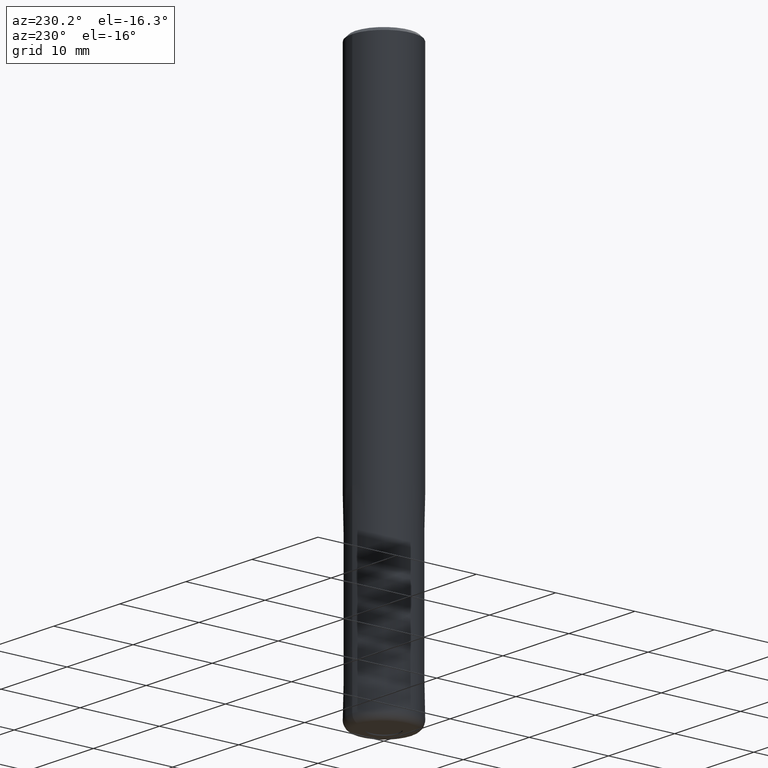
[diagram: clean part render]
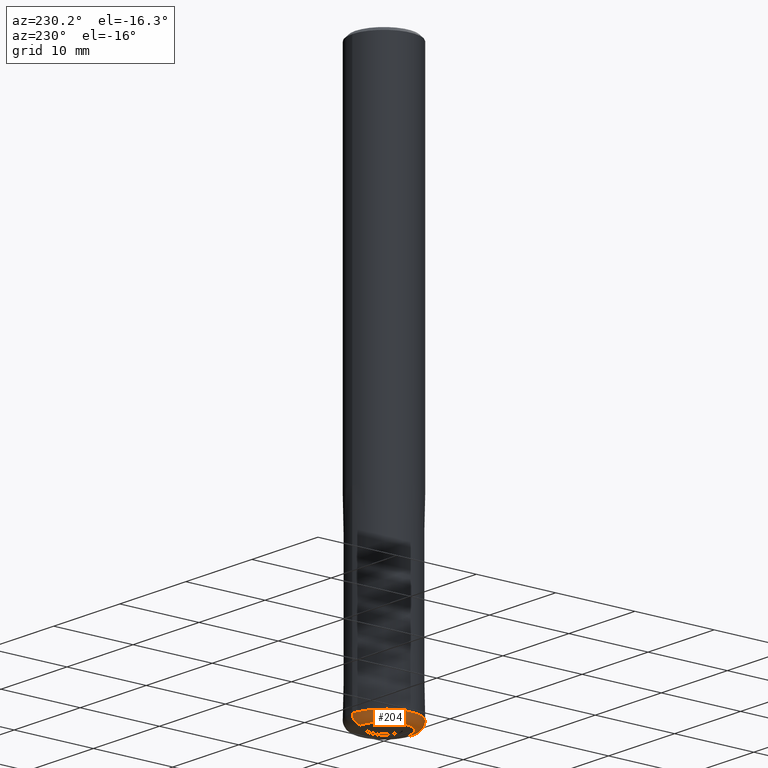
[diagram: same view with one face highlighted and labeled with its STEP entity id]
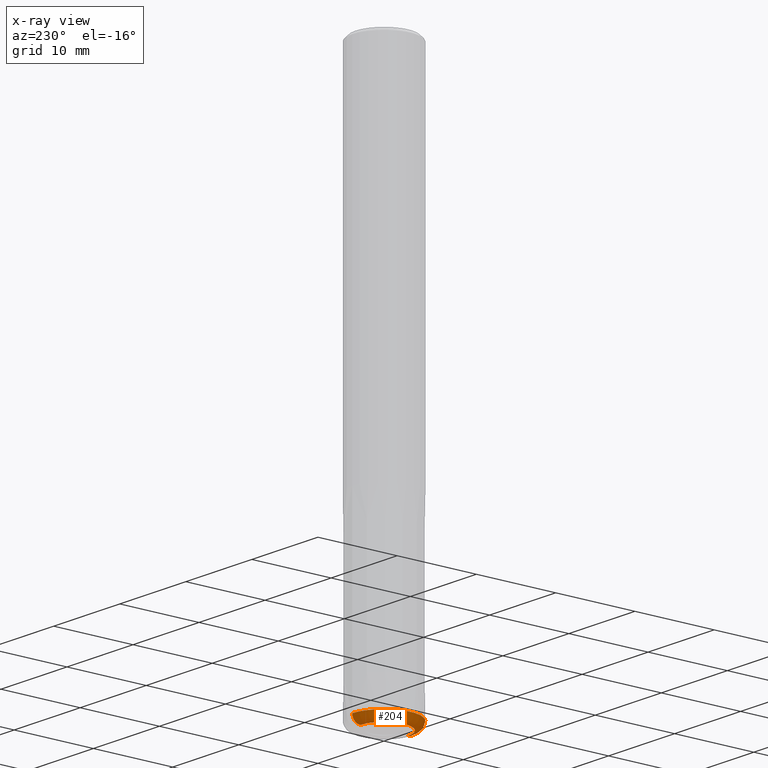
[diagram: x-ray of the same camera — body ghosted, the highlighted face saturated]
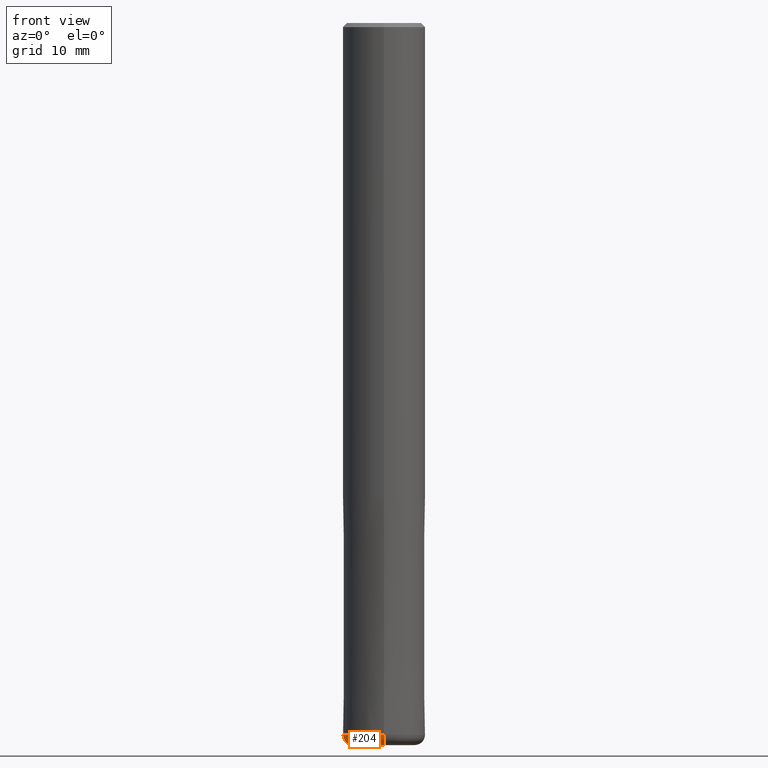
[diagram: same view with one face highlighted and labeled with its STEP entity id]
A machine part, auxiliary view. The second image highlights one B-rep face of the part: STEP entity #204.
The next image is the same camera in x-ray: the body ghosted, the highlighted face saturated — about 0% of this face is hidden behind the body in this view.
A second angle (front view) of the same face is appended — the face is thin or edge-on in the first view.
In plain terms, the highlighted toroidal blend (fillet) surface has major radius 3 mm and minor (blend) radius 1 mm.
Its self-contained STEP definition (entity closure, byte-faithful):
#112=EDGE_CURVE('',#216,#202,#273,.T.);
#126=EDGE_CURVE('',#132,#178,#288,.T.);
#132=VERTEX_POINT('',#294);
#152=EDGE_CURVE('',#202,#178,#318,.T.);
#178=VERTEX_POINT('',#348);
#202=VERTEX_POINT('',#376);
#204=ADVANCED_FACE('',(#378),#379,.T.);
#216=VERTEX_POINT('',#391);
#220=EDGE_CURVE('',#132,#216,#395,.T.);
#273=CIRCLE('',#448,3.0);
#288=CIRCLE('',#470,4.0);
#294=CARTESIAN_POINT('',(4.89842541528951E-016,-4.0,-69.0));
#318=CIRCLE('',#504,0.999999999999989);
#348=CARTESIAN_POINT('',(0.0,4.0,-69.0));
#376=CARTESIAN_POINT('',(0.0,3.0,-70.0));
#378=FACE_OUTER_BOUND('',#579,.T.);
#379=TOROIDAL_SURFACE('',#580,3.00000000000001,0.999999999999989);
#391=CARTESIAN_POINT('',(3.67381906146713E-016,-3.0,-70.0));
#395=CIRCLE('',#601,0.999999999999989);
#448=AXIS2_PLACEMENT_3D('',#643,#644,#645);
#470=AXIS2_PLACEMENT_3D('',#662,#663,#664);
#504=AXIS2_PLACEMENT_3D('',#699,#700,#701);
#579=EDGE_LOOP('',(#779,#780,#781,#782));
#580=AXIS2_PLACEMENT_3D('',#783,#784,#785);
#601=AXIS2_PLACEMENT_3D('',#797,#798,#799);
#643=CARTESIAN_POINT('',(0.0,0.0,-70.0));
#644=DIRECTION('',(0.0,0.0,-1.0));
#645=DIRECTION('',(0.0,1.0,0.0));
#662=CARTESIAN_POINT('',(0.0,0.0,-69.0));
#663=DIRECTION('',(0.0,0.0,-1.0));
#664=DIRECTION('',(0.0,1.0,0.0));
#699=CARTESIAN_POINT('',(-3.67381906146714E-016,3.00000000000001,-69.0));
#700=DIRECTION('',(1.0,1.22460635382238E-016,0.0));
#701=DIRECTION('',(-1.22460635382238E-016,1.0,0.0));
#779=ORIENTED_EDGE('',*,*,#220,.F.);
#780=ORIENTED_EDGE('',*,*,#126,.T.);
#781=ORIENTED_EDGE('',*,*,#152,.F.);
#782=ORIENTED_EDGE('',*,*,#112,.F.);
#783=CARTESIAN_POINT('',(0.0,0.0,-69.0));
#784=DIRECTION('',(0.0,0.0,-1.0));
#785=DIRECTION('',(0.0,-1.0,0.0));
#797=CARTESIAN_POINT('',(3.67381906146714E-016,-3.00000000000001,-69.0));
#798=DIRECTION('',(1.0,1.22460635382238E-016,0.0));
#799=DIRECTION('',(1.22460635382238E-016,-1.0,-0.0));